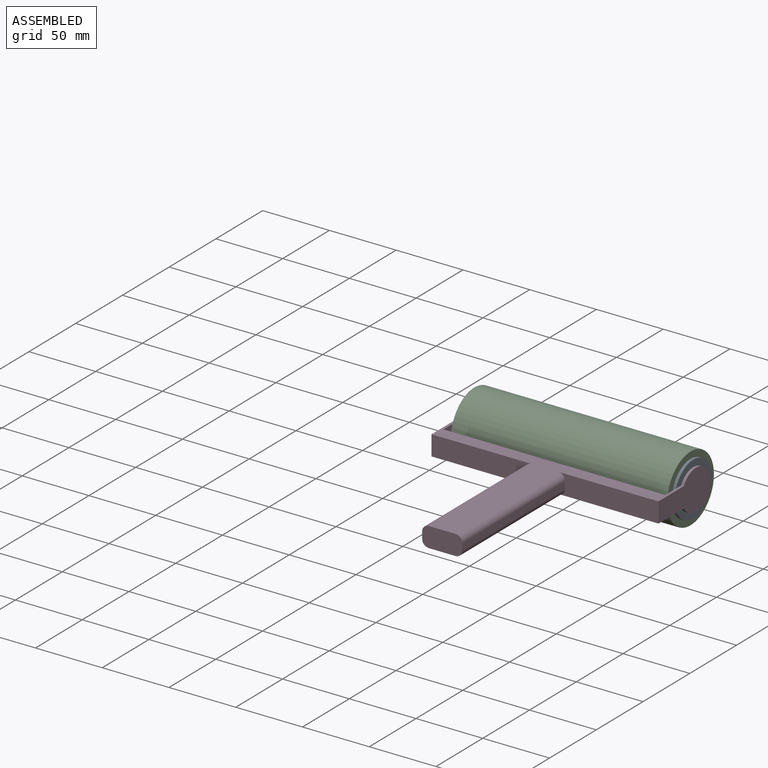
[diagram: assembled view]
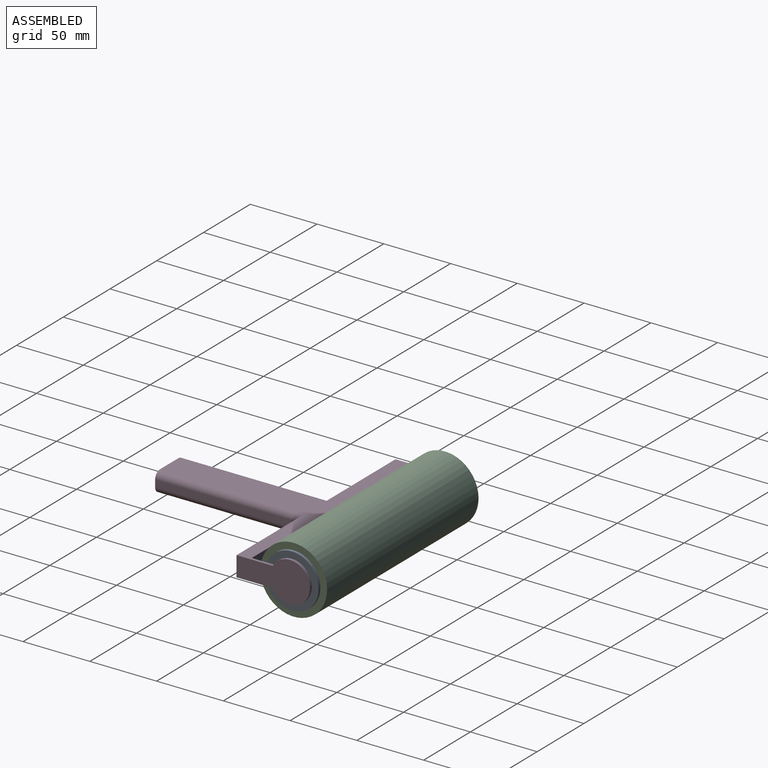
[diagram: assembled view, second angle]
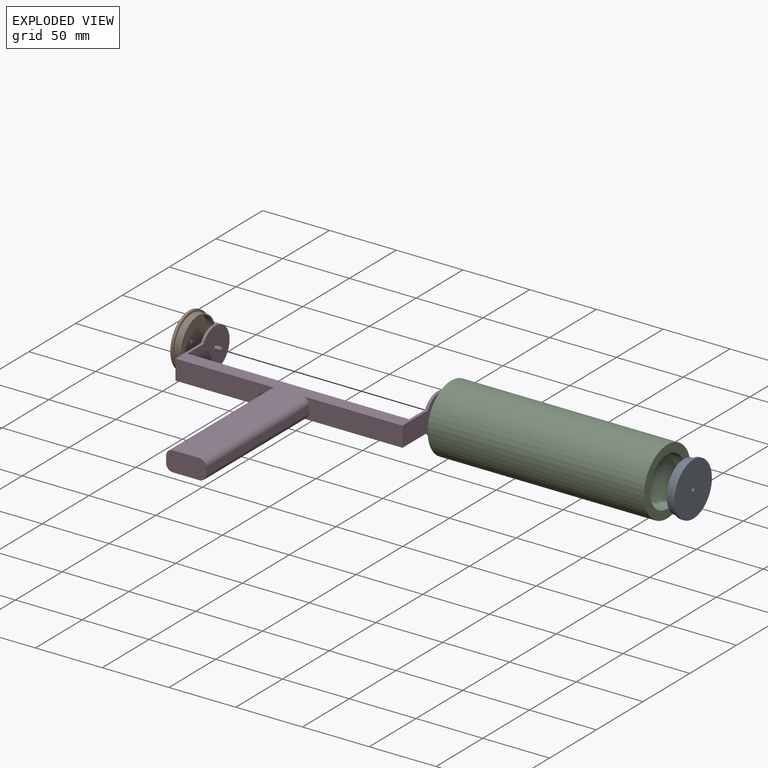
[diagram: exploded view]
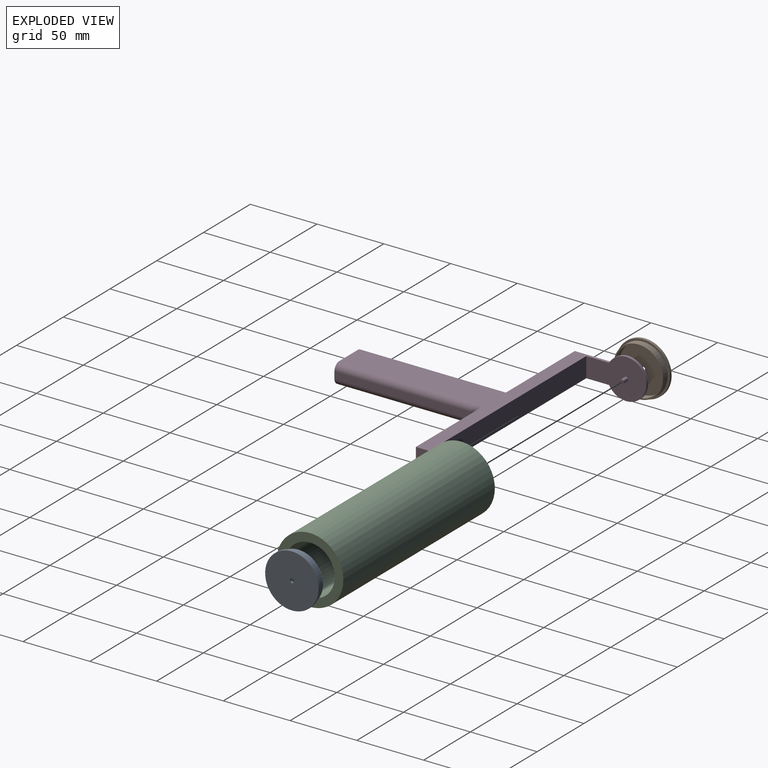
[diagram: exploded view, second angle]
ASSEMBLY  parts=4 mates=3
PART A: 8 faces, bbox 7x40x40 mm
  f0: plane 35x35mm, normal (1,0,0), area 955mm2, adj f1,f5
  f1: cylinder r=1.5mm len=3mm, axis (-1,0,0), area 18.8mm2, adj f0,f4
  f2: cylinder r=20mm len=40mm, axis (-1,0,0), area 251.3mm2, adj f3,f4
  f3: plane 40x40mm, normal (1,0,0), area 181.4mm2, adj f2,f6
  f4: plane 40x40mm, normal (-1,0,0), area 1249.6mm2, adj f1,f2
  f5: cylinder r=17.5mm len=35mm, axis (-1,0,0), area 549.8mm2, adj f0,f7
  f6: cylinder r=18.5mm len=37mm, axis (-1,0,0), area 581.2mm2, adj f3,f7
  f7: plane 37x37mm, normal (1,0,0), area 113.1mm2, adj f5,f6
PART B: same geometry as A
PART C: 4 faces, bbox 162x50x50 mm
  f0: cylinder r=18.5mm len=162mm, axis (-1,0,0), area 18830.7mm2, adj f2,f3
  f1: cylinder r=25mm len=162mm, axis (-1,0,0), area 25446.9mm2, adj f2,f3
  f2: plane 50x50mm, normal (1,0,0), area 888.3mm2, adj f0,f1
  f3: plane 50x50mm, normal (-1,0,0), area 888.3mm2, adj f0,f1
PART D: 22 faces, bbox 170x165x30 mm
  f0: plane 166x15mm, normal (0,1,0), area 2490mm2, adj f8,f9,f11,f19
  f1: plane 55x30mm, normal (-1,0,0), area 1091.6mm2, adj f2,f8,f9,f10
  f2: plane 75x15mm, normal (0,-1,0), area 1060.7mm2, adj f1,f3,f8,f9,f13,f15
  f3: plane 110x5mm, normal (-1,0,0), area 550mm2, adj f2,f4,f13,f15
  f4: plane 30x15mm, normal (0,-1,0), area 428.5mm2, adj f3,f5,f8,f9,f12,f13,f14,f15
  f5: plane 110x5mm, normal (1,0,0), area 550mm2, adj f4,f6,f12,f14
  f6: plane 75x15mm, normal (0,-1,0), area 1060.7mm2, adj f5,f7,f8,f9,f12,f14
  f7: plane 55x30mm, normal (1,0,0), area 1091.6mm2, adj f6,f8,f9,f18
  f8: plane 170x137.01mm, normal (0,0,1), area 3968mm2, adj f0,f1,f2,f4,f6,f7,f10,f11
  f9: plane 170x137.01mm, normal (0,0,-1), area 3968mm2, adj f0,f1,f2,f4,f6,f7,f10,f11
  f10: cylinder r=15mm len=30mm, axis (-1,0,0), area 157.1mm2, adj f1,f8,f9,f11
  f11: plane 45x30mm, normal (1,0,0), area 934.6mm2, adj f0,f8,f9,f10,f16
  f12: cylinder r=5mm len=110mm, axis (0,1,0), area 863.9mm2, adj f4,f5,f6,f9
  f13: cylinder r=5mm len=110mm, axis (0,-1,0), area 863.9mm2, adj f2,f3,f4,f9
  f14: cylinder r=5mm len=110mm, axis (0,-1,0), area 863.9mm2, adj f4,f5,f6,f8
  f15: cylinder r=5mm len=110mm, axis (0,1,0), area 863.9mm2, adj f2,f3,f4,f8
  f16: cylinder r=1.5mm len=5mm, axis (-1,0,0), area 47.1mm2, adj f11,f17
  f17: plane 3x3mm, normal (1,0,0), area 7.1mm2, adj f16
  f18: cylinder r=15mm len=30mm, axis (1,0,0), area 157.1mm2, adj f7,f8,f9,f19
  f19: plane 45x30mm, normal (-1,0,0), area 934.6mm2, adj f0,f8,f9,f18,f20
  f20: cylinder r=1.5mm len=5mm, axis (1,0,0), area 47.1mm2, adj f19,f21
  f21: plane 3x3mm, normal (-1,0,0), area 7.1mm2, adj f20
PLACE A rot(axis=(0,-0.83,0.56),180deg) t=(183.67,-130.14,72.17)mm
PLACE B t=(17.67,-130.14,72.17)mm
PLACE C rot(axis=(1,0,0),22.4deg) t=(100.67,-130.14,72.17)mm
PLACE D rot(axis=(0,1,0),180deg) t=(100.67,-160.14,72.17)mm
MATE revolute D.f10 <-> A.f2  axis (-1,0,0) through (183.67,-130.14,72.17)mm
MATE fastened C.f1 <-> A.f5  axis (1,0,0) through (181.67,-130.14,72.17)mm
MATE revolute D.f16 <-> B.f2  axis (1,0,0) through (17.67,-130.14,72.17)mm
